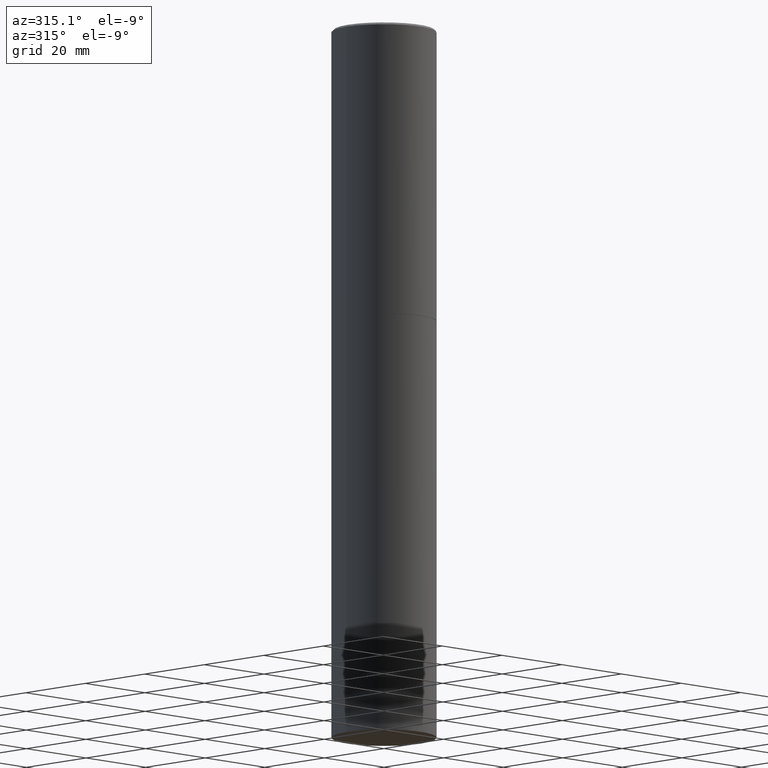
[diagram: clean part render]
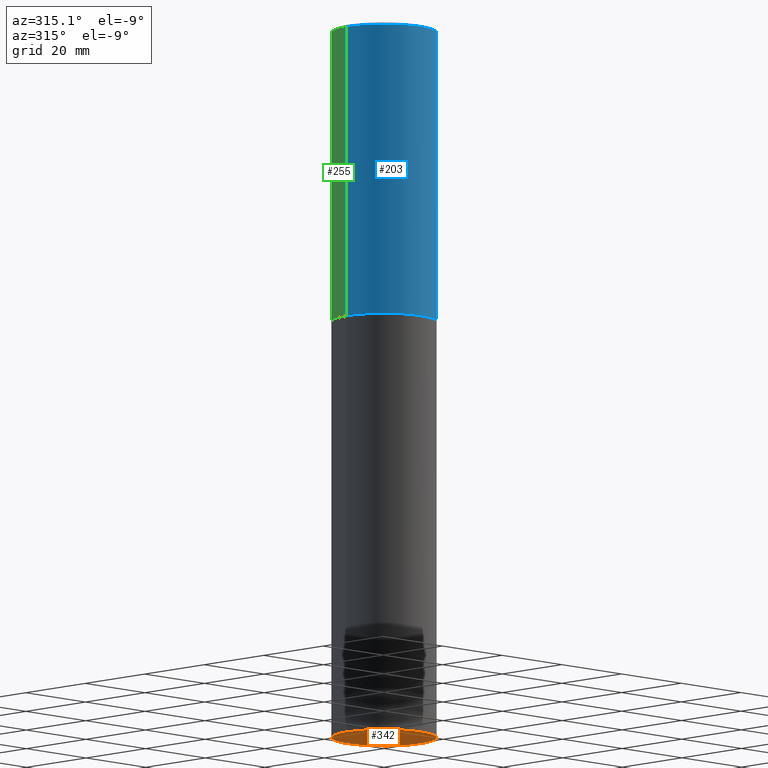
[diagram: same view with three faces highlighted in distinct colors, each labeled with its STEP entity id]
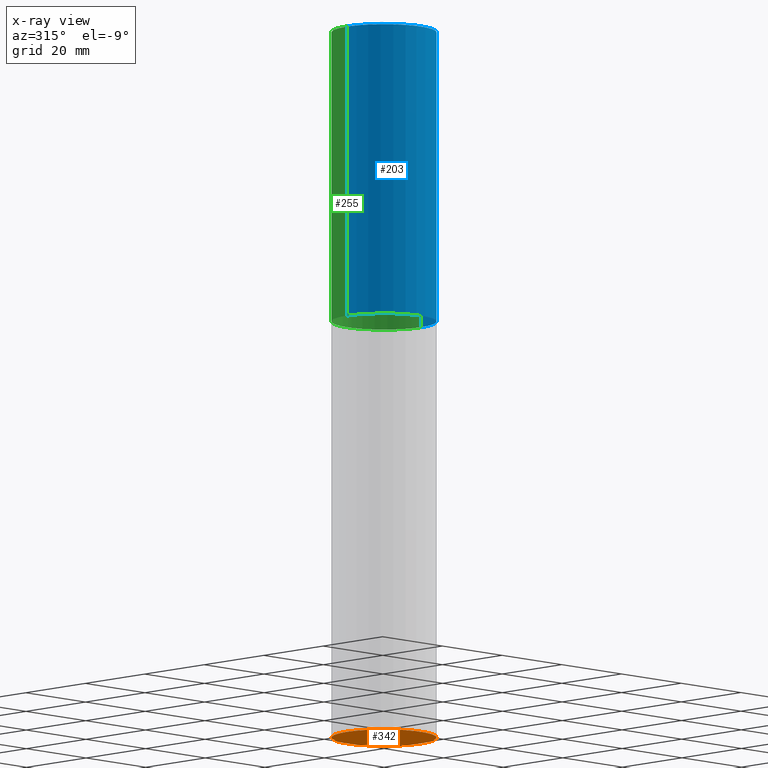
[diagram: x-ray of the same camera — body ghosted, the three highlighted faces saturated]
A machine part, auxiliary view with three faces highlighted in distinct colors.
The next image is the same camera in x-ray (body ghosted, the three faces saturated) — at least one of them is partly hidden behind the body in this view.
Their STEP definitions:

[orange] entity #342 — the highlighted planar face has unit normal (0, -0, -1).
#11 = AXIS2_PLACEMENT_3D ( 'NONE', #209, #335, #327 ) ;
#27 = DIRECTION ( 'NONE',  ( 2.438088387897960049E-29, -3.491481338843145188E-15, -1.000000000000000000 ) ) ;
#30 = DIRECTION ( 'NONE',  ( 1.000000000000000000, -6.982962677686265922E-15, 0.000000000000000000 ) ) ;
#31 = ORIENTED_EDGE ( 'NONE', *, *, #168, .F. ) ;
#38 = CARTESIAN_POINT ( 'NONE',  ( -0.4921499999999999764, -1.299821836318722399E-14, -6.692899999999999849 ) ) ;
#83 = CARTESIAN_POINT ( 'NONE',  ( 0.4921499999999999764, -2.680480053456658516E-14, -6.692899999999999849 ) ) ;
#84 = EDGE_LOOP ( 'NONE', ( #256, #31 ) ) ;
#85 = EDGE_CURVE ( 'NONE', #194, #249, #308, .T. ) ;
#92 = CARTESIAN_POINT ( 'NONE',  ( 1.636727817291649966E-28, -2.336813545274328780E-14, -6.692899999999999849 ) ) ;
#168 = EDGE_CURVE ( 'NONE', #249, #194, #237, .T. ) ;
#182 = AXIS2_PLACEMENT_3D ( 'NONE', #92, #233, #30 ) ;
#194 = VERTEX_POINT ( 'NONE', #83 ) ;
#199 = FACE_OUTER_BOUND ( 'NONE', #84, .T. ) ;
#209 = CARTESIAN_POINT ( 'NONE',  ( 1.636727817291649966E-28, -2.336813545274328780E-14, -6.692899999999999849 ) ) ;
#224 = PLANE ( 'NONE',  #314 ) ;
#233 = DIRECTION ( 'NONE',  ( -2.445468806185136597E-29, 3.491481338843145583E-15, 1.000000000000000000 ) ) ;
#237 = CIRCLE ( 'NONE', #182, 0.4921499999999999764 ) ;
#249 = VERTEX_POINT ( 'NONE', #38 ) ;
#256 = ORIENTED_EDGE ( 'NONE', *, *, #85, .F. ) ;
#308 = CIRCLE ( 'NONE', #11, 0.4921499999999999764 ) ;
#313 = CARTESIAN_POINT ( 'NONE',  ( 3.436665081823459465E-15, 0.4921499999999766062, -6.692900000000002514 ) ) ;
#314 = AXIS2_PLACEMENT_3D ( 'NONE', #313, #27, #341 ) ;
#327 = DIRECTION ( 'NONE',  ( 1.000000000000000000, -6.982962677686265922E-15, 0.000000000000000000 ) ) ;
#335 = DIRECTION ( 'NONE',  ( -2.445468806185136597E-29, 3.491481338843145583E-15, 1.000000000000000000 ) ) ;
#341 = DIRECTION ( 'NONE',  ( -1.000000000000000000, 6.982962677686265922E-15, -4.876176775795935793E-29 ) ) ;
#342 = ADVANCED_FACE ( 'NONE', ( #199 ), #224, .T. ) ;

[blue] entity #203 — the highlighted cylindrical surface (partial cylindrical patch) has radius 12.5006 mm, axis along (-0, 0, 1).
#5 = EDGE_LOOP ( 'NONE', ( #293, #251, #283, #277 ) ) ;
#16 = AXIS2_PLACEMENT_3D ( 'NONE', #231, #297, #347 ) ;
#23 = VERTEX_POINT ( 'NONE', #55 ) ;
#25 = CIRCLE ( 'NONE', #309, 0.4921499999999996988 ) ;
#26 = CARTESIAN_POINT ( 'NONE',  ( 4.890937612370296805E-31, -6.982962677686323656E-17, -0.02000000000000009409 ) ) ;
#55 = CARTESIAN_POINT ( 'NONE',  ( -0.4921499999999996988, 3.366835455046430506E-15, -0.02000000000000009409 ) ) ;
#61 = CYLINDRICAL_SURFACE ( 'NONE', #302, 0.4921499999999998098 ) ;
#66 = VECTOR ( 'NONE', #173, 39.37007874015748143 ) ;
#104 = VERTEX_POINT ( 'NONE', #145 ) ;
#119 = CARTESIAN_POINT ( 'NONE',  ( -0.4921499999999999764, -1.347319709534588852E-15, -2.754900000000000126 ) ) ;
#121 = CARTESIAN_POINT ( 'NONE',  ( 0.4921499999999998098, -3.436665081823294593E-15, 2.399810400207968762E-29 ) ) ;
#122 = EDGE_CURVE ( 'NONE', #330, #104, #157, .T. ) ;
#145 = CARTESIAN_POINT ( 'NONE',  ( 0.4921499999999999764, -1.305534702220227716E-14, -2.754900000000000126 ) ) ;
#147 = LINE ( 'NONE', #121, #349 ) ;
#155 = EDGE_CURVE ( 'NONE', #330, #23, #319, .T. ) ;
#157 = CIRCLE ( 'NONE', #16, 0.4921499999999999764 ) ;
#167 = DIRECTION ( 'NONE',  ( -2.445468806185136597E-29, 3.491481338843145583E-15, 1.000000000000000000 ) ) ;
#169 = CARTESIAN_POINT ( 'NONE',  ( 0.000000000000000000, 0.000000000000000000, 0.000000000000000000 ) ) ;
#173 = DIRECTION ( 'NONE',  ( -2.445468806185136877E-29, 3.491481338843145188E-15, 1.000000000000000000 ) ) ;
#190 = CARTESIAN_POINT ( 'NONE',  ( 0.4921499999999996988, -3.446223716380120377E-15, -0.02000000000000009409 ) ) ;
#197 = FACE_OUTER_BOUND ( 'NONE', #5, .T. ) ;
#203 = ADVANCED_FACE ( 'NONE', ( #197 ), #61, .T. ) ;
#231 = CARTESIAN_POINT ( 'NONE',  ( 6.737022014159432629E-29, -9.618681940378981383E-15, -2.754900000000000126 ) ) ;
#234 = CARTESIAN_POINT ( 'NONE',  ( -0.4921499999999998098, 3.496936074043331714E-15, -2.420853904668950949E-29 ) ) ;
#246 = EDGE_CURVE ( 'NONE', #104, #260, #147, .T. ) ;
#251 = ORIENTED_EDGE ( 'NONE', *, *, #122, .T. ) ;
#254 = DIRECTION ( 'NONE',  ( 1.000000000000000000, -6.982962677686265922E-15, 0.000000000000000000 ) ) ;
#260 = VERTEX_POINT ( 'NONE', #190 ) ;
#267 = EDGE_CURVE ( 'NONE', #23, #260, #25, .T. ) ;
#268 = DIRECTION ( 'NONE',  ( -2.445468806185136877E-29, 3.491481338843145188E-15, 1.000000000000000000 ) ) ;
#277 = ORIENTED_EDGE ( 'NONE', *, *, #267, .F. ) ;
#283 = ORIENTED_EDGE ( 'NONE', *, *, #246, .T. ) ;
#292 = DIRECTION ( 'NONE',  ( 1.000000000000000000, -6.982962677686265922E-15, 4.876176775795935793E-29 ) ) ;
#293 = ORIENTED_EDGE ( 'NONE', *, *, #155, .F. ) ;
#297 = DIRECTION ( 'NONE',  ( -2.445468806185136597E-29, 3.491481338843145583E-15, 1.000000000000000000 ) ) ;
#302 = AXIS2_PLACEMENT_3D ( 'NONE', #169, #348, #292 ) ;
#309 = AXIS2_PLACEMENT_3D ( 'NONE', #26, #167, #254 ) ;
#319 = LINE ( 'NONE', #234, #66 ) ;
#330 = VERTEX_POINT ( 'NONE', #119 ) ;
#347 = DIRECTION ( 'NONE',  ( 1.000000000000000000, -6.982962677686265922E-15, 0.000000000000000000 ) ) ;
#348 = DIRECTION ( 'NONE',  ( -2.445468806185136597E-29, 3.491481338843145583E-15, 1.000000000000000000 ) ) ;
#349 = VECTOR ( 'NONE', #268, 39.37007874015748143 ) ;

[green] entity #255 — the highlighted cylindrical surface (partial cylindrical patch) has radius 12.5006 mm, axis along (-0, 0, 1).
#23 = VERTEX_POINT ( 'NONE', #55 ) ;
#41 = AXIS2_PLACEMENT_3D ( 'NONE', #219, #295, #65 ) ;
#46 = DIRECTION ( 'NONE',  ( -2.445468806185136597E-29, 3.491481338843145583E-15, 1.000000000000000000 ) ) ;
#55 = CARTESIAN_POINT ( 'NONE',  ( -0.4921499999999996988, 3.366835455046430506E-15, -0.02000000000000009409 ) ) ;
#65 = DIRECTION ( 'NONE',  ( 1.000000000000000000, -6.982962677686265922E-15, 0.000000000000000000 ) ) ;
#66 = VECTOR ( 'NONE', #173, 39.37007874015748143 ) ;
#81 = EDGE_CURVE ( 'NONE', #104, #330, #301, .T. ) ;
#94 = EDGE_CURVE ( 'NONE', #260, #23, #220, .T. ) ;
#95 = AXIS2_PLACEMENT_3D ( 'NONE', #303, #46, #152 ) ;
#104 = VERTEX_POINT ( 'NONE', #145 ) ;
#113 = ORIENTED_EDGE ( 'NONE', *, *, #155, .T. ) ;
#119 = CARTESIAN_POINT ( 'NONE',  ( -0.4921499999999999764, -1.347319709534588852E-15, -2.754900000000000126 ) ) ;
#121 = CARTESIAN_POINT ( 'NONE',  ( 0.4921499999999998098, -3.436665081823294593E-15, 2.399810400207968762E-29 ) ) ;
#124 = FACE_OUTER_BOUND ( 'NONE', #193, .T. ) ;
#145 = CARTESIAN_POINT ( 'NONE',  ( 0.4921499999999999764, -1.305534702220227716E-14, -2.754900000000000126 ) ) ;
#147 = LINE ( 'NONE', #121, #349 ) ;
#152 = DIRECTION ( 'NONE',  ( 1.000000000000000000, -6.982962677686265922E-15, 0.000000000000000000 ) ) ;
#155 = EDGE_CURVE ( 'NONE', #330, #23, #319, .T. ) ;
#156 = DIRECTION ( 'NONE',  ( -2.445468806185136597E-29, 3.491481338843145583E-15, 1.000000000000000000 ) ) ;
#173 = DIRECTION ( 'NONE',  ( -2.445468806185136877E-29, 3.491481338843145188E-15, 1.000000000000000000 ) ) ;
#187 = CARTESIAN_POINT ( 'NONE',  ( 0.000000000000000000, 0.000000000000000000, 0.000000000000000000 ) ) ;
#190 = CARTESIAN_POINT ( 'NONE',  ( 0.4921499999999996988, -3.446223716380120377E-15, -0.02000000000000009409 ) ) ;
#193 = EDGE_LOOP ( 'NONE', ( #358, #113, #244, #215 ) ) ;
#214 = CYLINDRICAL_SURFACE ( 'NONE', #252, 0.4921499999999998098 ) ;
#215 = ORIENTED_EDGE ( 'NONE', *, *, #246, .F. ) ;
#217 = DIRECTION ( 'NONE',  ( 1.000000000000000000, -6.982962677686265922E-15, 4.876176775795935793E-29 ) ) ;
#219 = CARTESIAN_POINT ( 'NONE',  ( 4.890937612370296805E-31, -6.982962677686323656E-17, -0.02000000000000009409 ) ) ;
#220 = CIRCLE ( 'NONE', #41, 0.4921499999999996988 ) ;
#234 = CARTESIAN_POINT ( 'NONE',  ( -0.4921499999999998098, 3.496936074043331714E-15, -2.420853904668950949E-29 ) ) ;
#244 = ORIENTED_EDGE ( 'NONE', *, *, #94, .F. ) ;
#246 = EDGE_CURVE ( 'NONE', #104, #260, #147, .T. ) ;
#252 = AXIS2_PLACEMENT_3D ( 'NONE', #187, #156, #217 ) ;
#255 = ADVANCED_FACE ( 'NONE', ( #124 ), #214, .T. ) ;
#260 = VERTEX_POINT ( 'NONE', #190 ) ;
#268 = DIRECTION ( 'NONE',  ( -2.445468806185136877E-29, 3.491481338843145188E-15, 1.000000000000000000 ) ) ;
#295 = DIRECTION ( 'NONE',  ( -2.445468806185136597E-29, 3.491481338843145583E-15, 1.000000000000000000 ) ) ;
#301 = CIRCLE ( 'NONE', #95, 0.4921499999999999764 ) ;
#303 = CARTESIAN_POINT ( 'NONE',  ( 6.737022014159432629E-29, -9.618681940378981383E-15, -2.754900000000000126 ) ) ;
#319 = LINE ( 'NONE', #234, #66 ) ;
#330 = VERTEX_POINT ( 'NONE', #119 ) ;
#349 = VECTOR ( 'NONE', #268, 39.37007874015748143 ) ;
#358 = ORIENTED_EDGE ( 'NONE', *, *, #81, .T. ) ;